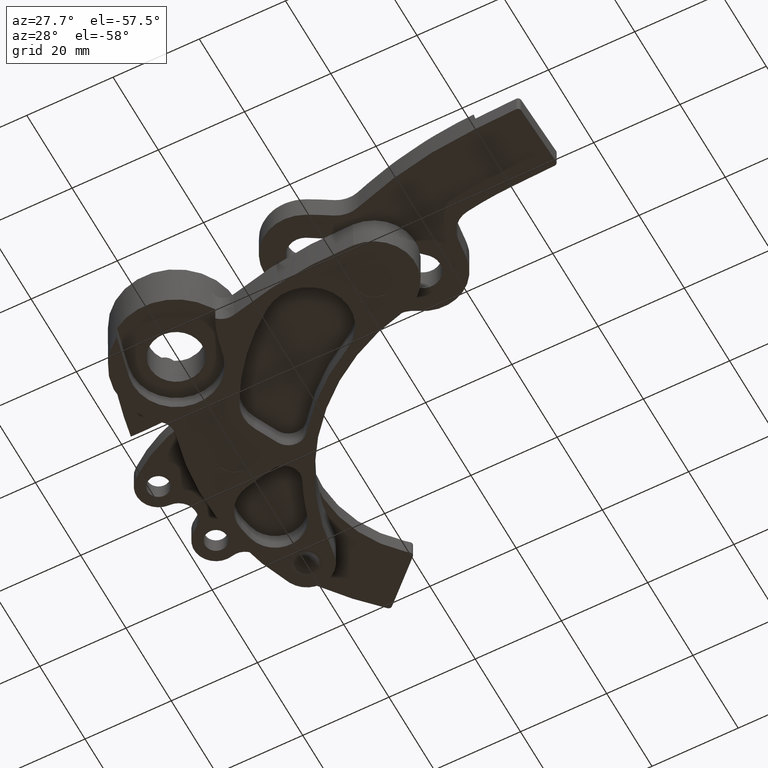
[diagram: clean part render]
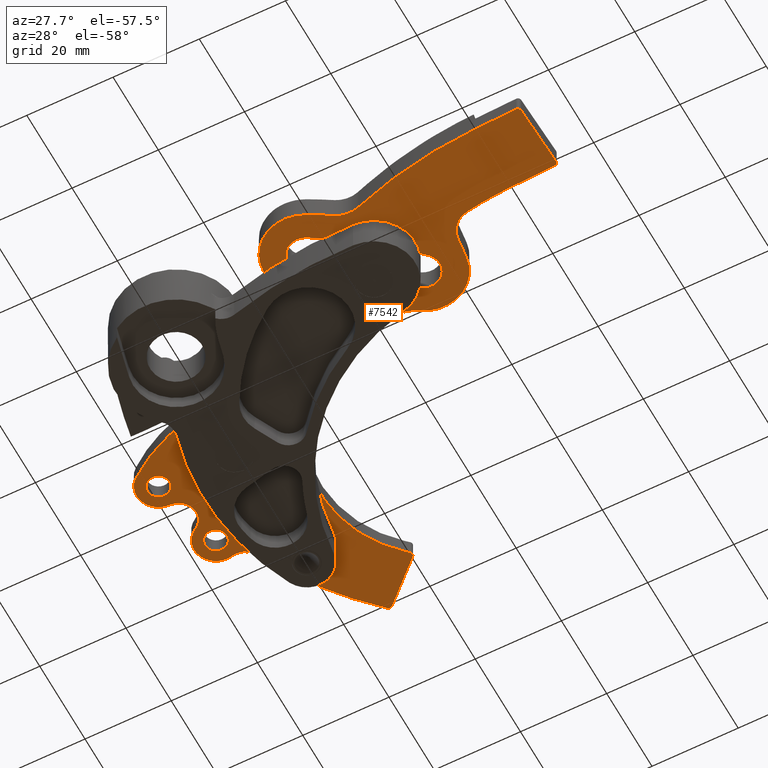
[diagram: same view with one face highlighted and labeled with its STEP entity id]
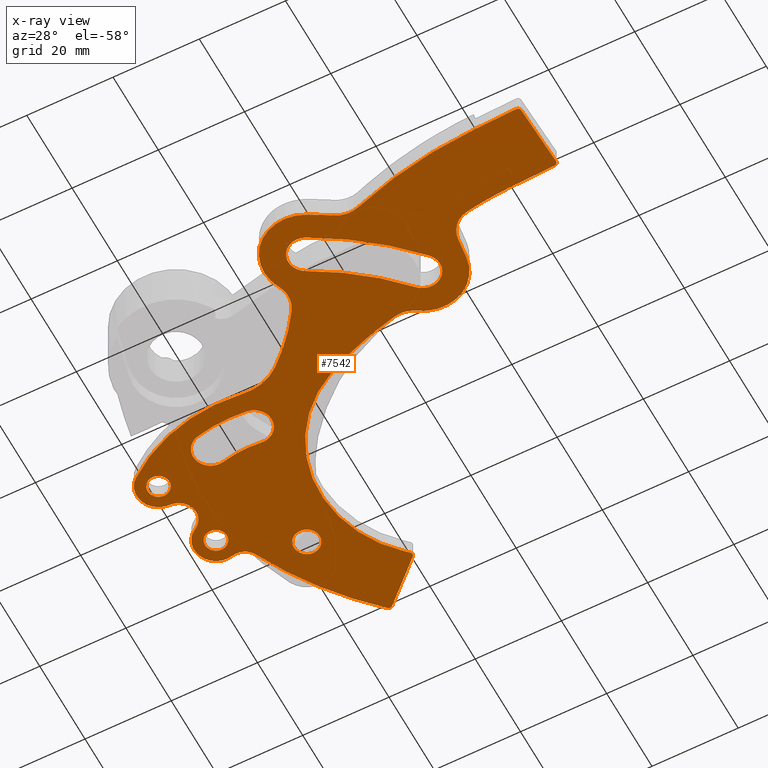
[diagram: x-ray of the same camera — body ghosted, the highlighted face saturated]
A machine part, auxiliary view. The second image highlights one B-rep face of the part: STEP entity #7542.
The next image is the same camera in x-ray: the body ghosted, the highlighted face saturated — about 0% of this face is hidden behind the body in this view.
In plain terms, the highlighted planar face has unit normal (-0, -0, -1).
Its self-contained STEP definition (entity closure, byte-faithful):
#38 = LINE ( 'NONE', #1823, #39 ) ;
#39 = VECTOR ( 'NONE', #1824, 39.37007874015748900 ) ;
#40 = CIRCLE ( 'NONE', #2434, 0.3799999999999046900 ) ;
#42 = LINE ( 'NONE', #1848, #46 ) ;
#43 = LINE ( 'NONE', #1846, #48 ) ;
#46 = VECTOR ( 'NONE', #1854, 39.37007874015748100 ) ;
#48 = VECTOR ( 'NONE', #1856, 39.37007874015748900 ) ;
#51 = CIRCLE ( 'NONE', #2435, 0.1599999999995502800 ) ;
#53 = CIRCLE ( 'NONE', #2436, 2.916000000003148500 ) ;
#56 = CIRCLE ( 'NONE', #2437, 0.1600000000020603000 ) ;
#74 = CIRCLE ( 'NONE', #2450, 2.596000000002185900 ) ;
#78 = CIRCLE ( 'NONE', #2449, 0.1599999999989022700 ) ;
#309 = CIRCLE ( 'NONE', #2538, 0.03000000000058948600 ) ;
#472 = EDGE_CURVE ( 'NONE', #7864, #9071, #38, .T. ) ;
#477 = EDGE_CURVE ( 'NONE', #8271, #9036, #40, .T. ) ;
#542 = EDGE_CURVE ( 'NONE', #9054, #8271, #42, .T. ) ;
#543 = EDGE_CURVE ( 'NONE', #9052, #9027, #43, .T. ) ;
#702 = CARTESIAN_POINT ( 'NONE',  ( 11.09119004668995800, -0.1122164447710053100, 0.003199999999999994900 ) ) ;
#703 = DIRECTION ( 'NONE',  ( -5.084455053182305500E-030, 1.747819943130306000E-029, -1.000000000000000000 ) ) ;
#704 = DIRECTION ( 'NONE',  ( -1.000000000000000000, 0.0000000000000000000, 0.0000000000000000000 ) ) ;
#721 = CARTESIAN_POINT ( 'NONE',  ( 7.873229893112962500, -0.2268133469190051500, 0.003199999999999994900 ) ) ;
#722 = DIRECTION ( 'NONE',  ( -5.084455053182305500E-030, 1.747819943130306000E-029, -1.000000000000000000 ) ) ;
#723 = DIRECTION ( 'NONE',  ( -1.000000000000000000, 2.206492610268077400E-016, 0.0000000000000000000 ) ) ;
#728 = CARTESIAN_POINT ( 'NONE',  ( 10.58792765275995700, -0.09287278627900162600, 0.003200000000000131600 ) ) ;
#729 = DIRECTION ( 'NONE',  ( -5.084455053182305500E-030, 1.747819943130306000E-029, -1.000000000000000000 ) ) ;
#730 = DIRECTION ( 'NONE',  ( -1.000000000000000000, 0.0000000000000000000, 0.0000000000000000000 ) ) ;
#752 = CARTESIAN_POINT ( 'NONE',  ( 7.873229893112962500, -0.2268133469190051500, 0.003199999999999994900 ) ) ;
#753 = DIRECTION ( 'NONE',  ( 5.084455053182305500E-030, -1.747819943130306000E-029, 1.000000000000000000 ) ) ;
#754 = DIRECTION ( 'NONE',  ( -1.000000000000000000, 2.159664057491422500E-016, 0.0000000000000000000 ) ) ;
#761 = CIRCLE ( 'NONE', #2543, 3.249999999998839600 ) ;
#769 = CIRCLE ( 'NONE', #2544, 0.03000000000154454100 ) ;
#775 = CIRCLE ( 'NONE', #2549, 2.687999999999822100 ) ;
#800 = CIRCLE ( 'NONE', #2561, 0.03000000000005295000 ) ;
#811 = CIRCLE ( 'NONE', #2564, 0.02999999999995460500 ) ;
#891 = CIRCLE ( 'NONE', #2626, 4.026080047428886000 ) ;
#894 = CIRCLE ( 'NONE', #2628, 0.2500000000020454200 ) ;
#895 = CIRCLE ( 'NONE', #2627, 0.3800000000003483400 ) ;
#898 = CIRCLE ( 'NONE', #2629, 3.136000000003349000 ) ;
#905 = CIRCLE ( 'NONE', #8307, 1.021000000000895900 ) ;
#908 = CIRCLE ( 'NONE', #8306, 0.1600000000017641500 ) ;
#956 = CIRCLE ( 'NONE', #8327, 0.1600000000016133500 ) ;
#958 = CIRCLE ( 'NONE', #8328, 0.1994853425483170400 ) ;
#960 = CIRCLE ( 'NONE', #8329, 0.1499999999977612900 ) ;
#963 = CIRCLE ( 'NONE', #8330, 0.1994999999988372200 ) ;
#1023 = FACE_BOUND ( 'NONE', #7212, .T. ) ;
#1028 = FACE_OUTER_BOUND ( 'NONE', #7196, .T. ) ;
#1031 = FACE_BOUND ( 'NONE', #7208, .T. ) ;
#1033 = FACE_BOUND ( 'NONE', #7219, .T. ) ;
#1035 = FACE_BOUND ( 'NONE', #7184, .T. ) ;
#1036 = FACE_BOUND ( 'NONE', #7175, .T. ) ;
#1283 = CARTESIAN_POINT ( 'NONE',  ( 6.648430148236972300, -0.1040209946030035800, 0.003200000000000012300 ) ) ;
#1284 = DIRECTION ( 'NONE',  ( -5.084455053182305500E-030, 1.747819943130306000E-029, -1.000000000000000000 ) ) ;
#1285 = DIRECTION ( 'NONE',  ( -1.000000000000000000, 0.0000000000000000000, 0.0000000000000000000 ) ) ;
#1303 = CARTESIAN_POINT ( 'NONE',  ( 6.265114946555971000, -0.5191046682880067200, 0.003200000000000131600 ) ) ;
#1304 = DIRECTION ( 'NONE',  ( -5.084455053182305500E-030, 1.747819943130306000E-029, -1.000000000000000000 ) ) ;
#1305 = DIRECTION ( 'NONE',  ( -1.000000000000000000, 0.0000000000000000000, 0.0000000000000000000 ) ) ;
#1554 = CARTESIAN_POINT ( 'NONE',  ( 9.509627613741763200, -1.843671690561141700, 0.003199999999999994900 ) ) ;
#1560 = CARTESIAN_POINT ( 'NONE',  ( 7.795070564193756500, -0.7943310139426157400, 0.003199999999999994900 ) ) ;
#1573 = CARTESIAN_POINT ( 'NONE',  ( 10.17401667084176300, -1.793704188674870800, 0.003199999999999994900 ) ) ;
#1575 = CARTESIAN_POINT ( 'NONE',  ( 7.926542125840931900, -1.798477056020920000, 0.003200000000000131600 ) ) ;
#1581 = CARTESIAN_POINT ( 'NONE',  ( 10.85858653422763000, -1.820884041226206400, 0.003199999999999994900 ) ) ;
#1591 = CARTESIAN_POINT ( 'NONE',  ( 9.658039765167428600, -1.757526072504479200, 0.003199999999999994900 ) ) ;
#1603 = CARTESIAN_POINT ( 'NONE',  ( 8.231799938240385500, -1.702468369071676900, 0.003199999999999994900 ) ) ;
#1614 = CARTESIAN_POINT ( 'NONE',  ( 11.01422268085558500, -1.456947889820326100, 0.003199999999999994900 ) ) ;
#1615 = CARTESIAN_POINT ( 'NONE',  ( 8.114755982816086900, -0.8085166800465837200, 0.003199999999999994900 ) ) ;
#1626 = CARTESIAN_POINT ( 'NONE',  ( 9.908638226305374300, -1.558527551710728400, 0.003199999999999994900 ) ) ;
#1630 = CARTESIAN_POINT ( 'NONE',  ( 10.00659264872834500, -2.066411351800823100, 0.003199999999999994900 ) ) ;
#1640 = CARTESIAN_POINT ( 'NONE',  ( 9.268527513229967600, 2.146698887045992000, 0.003200000000000012300 ) ) ;
#1641 = DIRECTION ( 'NONE',  ( -5.084455053182305500E-030, 1.747819943130306000E-029, -1.000000000000000000 ) ) ;
#1642 = DIRECTION ( 'NONE',  ( -1.000000000000000000, 2.035613769335407200E-016, 0.0000000000000000000 ) ) ;
#1645 = CARTESIAN_POINT ( 'NONE',  ( 8.079171032040967800, -1.750472712553000900, 0.003200000000000012300 ) ) ;
#1646 = DIRECTION ( 'NONE',  ( -5.084455053182305500E-030, 1.747819943130306000E-029, -1.000000000000000000 ) ) ;
#1647 = DIRECTION ( 'NONE',  ( -1.000000000000000000, 0.0000000000000000000, 0.0000000000000000000 ) ) ;
#1649 = CARTESIAN_POINT ( 'NONE',  ( 7.413897811029968000, -1.706249236112002300, 0.003199999999999994900 ) ) ;
#1650 = DIRECTION ( 'NONE',  ( 5.084455053182305500E-030, -1.747819943130306000E-029, 1.000000000000000000 ) ) ;
#1651 = DIRECTION ( 'NONE',  ( -1.000000000000000000, 0.0000000000000000000, 0.0000000000000000000 ) ) ;
#1655 = CARTESIAN_POINT ( 'NONE',  ( 10.70820394135996300, -0.9235978963070037300, 0.003199999999999994900 ) ) ;
#1656 = DIRECTION ( 'NONE',  ( -5.084455053182305500E-030, 1.747819943130306000E-029, -1.000000000000000000 ) ) ;
#1657 = DIRECTION ( 'NONE',  ( -1.000000000000000000, 2.177812494946863800E-016, 0.0000000000000000000 ) ) ;
#1658 = CARTESIAN_POINT ( 'NONE',  ( 9.186298180562380000, -1.666655552787518000, 0.003199999999999994900 ) ) ;
#1663 = CARTESIAN_POINT ( 'NONE',  ( 8.626958189774466500, -1.700579372697034900, 0.003199999999999994900 ) ) ;
#1684 = CARTESIAN_POINT ( 'NONE',  ( 9.783338995736958300, -1.658026812109002500, 0.003199999999999994900 ) ) ;
#1685 = DIRECTION ( 'NONE',  ( -5.084455053182305500E-030, 1.747819943130306000E-029, -1.000000000000000000 ) ) ;
#1686 = DIRECTION ( 'NONE',  ( -1.000000000000000000, 0.0000000000000000000, 0.0000000000000000000 ) ) ;
#1689 = CARTESIAN_POINT ( 'NONE',  ( 10.70820394135996300, -0.9235978963070037300, 0.003199999999999994900 ) ) ;
#1690 = DIRECTION ( 'NONE',  ( 5.084455053182305500E-030, -1.747819943130306000E-029, 1.000000000000000000 ) ) ;
#1691 = DIRECTION ( 'NONE',  ( -1.000000000000000000, 2.675659151480770000E-016, 0.0000000000000000000 ) ) ;
#1730 = CARTESIAN_POINT ( 'NONE',  ( 8.079171032040967800, -1.750472712553000900, 0.003200000000000012300 ) ) ;
#1731 = DIRECTION ( 'NONE',  ( -5.084455053182305500E-030, 1.747819943130306000E-029, -1.000000000000000000 ) ) ;
#1732 = DIRECTION ( 'NONE',  ( -1.000000000000000000, 0.0000000000000000000, 0.0000000000000000000 ) ) ;
#1735 = CARTESIAN_POINT ( 'NONE',  ( 10.70820394135996300, -0.9235978963070037300, 0.003199999999999994900 ) ) ;
#1736 = DIRECTION ( 'NONE',  ( 5.084455053182305500E-030, -1.747819943130306000E-029, 1.000000000000000000 ) ) ;
#1737 = DIRECTION ( 'NONE',  ( -1.000000000000000000, 2.104659471234177800E-016, 0.0000000000000000000 ) ) ;
#1822 = EDGE_CURVE ( 'NONE', #7100, #7160, #51, .T. ) ;
#1823 = CARTESIAN_POINT ( 'NONE',  ( 6.537097981614321500, -0.8111065937337589300, 0.003199999999999994900 ) ) ;
#1824 = DIRECTION ( 'NONE',  ( -0.7346613693549278700, 0.6784339852760489200, -1.559232882975908400E-029 ) ) ;
#1846 = CARTESIAN_POINT ( 'NONE',  ( 6.243075105474610500, -0.4987516487308426000, 0.003199999999999994900 ) ) ;
#1848 = CARTESIAN_POINT ( 'NONE',  ( 7.572026926337409600, -0.6196241644480170500, 0.003199999999999994900 ) ) ;
#1850 = CARTESIAN_POINT ( 'NONE',  ( 7.954913273504974600, -0.8014238469949985800, 0.003199999999999994900 ) ) ;
#1851 = DIRECTION ( 'NONE',  ( -5.084455053182305500E-030, 1.747819943130306000E-029, -1.000000000000000000 ) ) ;
#1852 = DIRECTION ( 'NONE',  ( -1.000000000000000000, 3.594536833769668900E-016, 0.0000000000000000000 ) ) ;
#1854 = DIRECTION ( 'NONE',  ( 0.7847005334015128000, 0.6198750461821973500, -6.837821674552456200E-030 ) ) ;
#1856 = DIRECTION ( 'NONE',  ( 0.6784339852761216400, 0.7346613693548608200, -9.386212176965652300E-030 ) ) ;
#1863 = CARTESIAN_POINT ( 'NONE',  ( 10.09030465977996500, -1.930057770234998100, 0.003199999999999994900 ) ) ;
#1864 = DIRECTION ( 'NONE',  ( -5.084455053182305500E-030, 1.747819943130306000E-029, -1.000000000000000000 ) ) ;
#1865 = DIRECTION ( 'NONE',  ( -1.000000000000000000, 0.0000000000000000000, 0.0000000000000000000 ) ) ;
#1867 = CARTESIAN_POINT ( 'NONE',  ( 10.70820394135996300, -0.9235978963070037300, 0.003199999999999994900 ) ) ;
#1868 = DIRECTION ( 'NONE',  ( -5.084455053182305500E-030, 1.747819943130306000E-029, -1.000000000000000000 ) ) ;
#1869 = DIRECTION ( 'NONE',  ( -1.000000000000000000, 2.342119336129383900E-016, 0.0000000000000000000 ) ) ;
#1871 = CARTESIAN_POINT ( 'NONE',  ( 7.954913273504974600, -0.8014238469949985800, 0.003199999999999994900 ) ) ;
#1872 = DIRECTION ( 'NONE',  ( -5.084455053182305500E-030, 1.747819943130306000E-029, -1.000000000000000000 ) ) ;
#1873 = DIRECTION ( 'NONE',  ( -1.000000000000000000, 0.0000000000000000000, 0.0000000000000000000 ) ) ;
#1981 = CARTESIAN_POINT ( 'NONE',  ( 10.81471731817996600, -1.974752465161000700, 0.003200000000000029200 ) ) ;
#1982 = DIRECTION ( 'NONE',  ( 5.084455053182305500E-030, -1.747819943130306000E-029, 1.000000000000000000 ) ) ;
#1983 = DIRECTION ( 'NONE',  ( -1.000000000000000000, 0.0000000000000000000, 0.0000000000000000000 ) ) ;
#1986 = CARTESIAN_POINT ( 'NONE',  ( 10.55809292164995500, -2.226493662847007100, 0.003199999999999994900 ) ) ;
#1987 = DIRECTION ( 'NONE',  ( -5.084455053182305500E-030, 1.747819943130306000E-029, -1.000000000000000000 ) ) ;
#1988 = DIRECTION ( 'NONE',  ( -1.000000000000000000, 0.0000000000000000000, 0.0000000000000000000 ) ) ;
#1991 = CARTESIAN_POINT ( 'NONE',  ( 11.09011494978995800, -1.327563333108008300, 0.003199999999999994900 ) ) ;
#1992 = DIRECTION ( 'NONE',  ( 5.084455053182305500E-030, -1.747819943130306000E-029, 1.000000000000000000 ) ) ;
#1993 = DIRECTION ( 'NONE',  ( -1.000000000000000000, 0.0000000000000000000, 0.0000000000000000000 ) ) ;
#1996 = CARTESIAN_POINT ( 'NONE',  ( 10.91328596297995500, -1.629029350135004400, 0.003200000000000131600 ) ) ;
#1997 = DIRECTION ( 'NONE',  ( -5.084455053182305500E-030, 1.747819943130306000E-029, -1.000000000000000000 ) ) ;
#1998 = DIRECTION ( 'NONE',  ( -1.000000000000000000, 0.0000000000000000000, 0.0000000000000000000 ) ) ;
#2143 = EDGE_CURVE ( 'NONE', #7098, #7095, #53, .T. ) ;
#2145 = EDGE_CURVE ( 'NONE', #7095, #7143, #56, .T. ) ;
#2171 = EDGE_CURVE ( 'NONE', #7130, #7098, #78, .T. ) ;
#2172 = EDGE_CURVE ( 'NONE', #7143, #7130, #74, .T. ) ;
#2337 = EDGE_CURVE ( 'NONE', #9064, #9044, #309, .T. ) ;
#2343 = EDGE_CURVE ( 'NONE', #9044, #9087, #761, .T. ) ;
#2346 = EDGE_CURVE ( 'NONE', #7892, #7896, #769, .T. ) ;
#2354 = EDGE_CURVE ( 'NONE', #7842, #7892, #775, .T. ) ;
#2375 = EDGE_CURVE ( 'NONE', #9027, #9069, #800, .T. ) ;
#2383 = EDGE_CURVE ( 'NONE', #9071, #9052, #811, .T. ) ;
#2434 = AXIS2_PLACEMENT_3D ( 'NONE', #1850, #1851, #1852 ) ;
#2435 = AXIS2_PLACEMENT_3D ( 'NONE', #1863, #1864, #1865 ) ;
#2436 = AXIS2_PLACEMENT_3D ( 'NONE', #1867, #1868, #1869 ) ;
#2437 = AXIS2_PLACEMENT_3D ( 'NONE', #1871, #1872, #1873 ) ;
#2449 = AXIS2_PLACEMENT_3D ( 'NONE', #1730, #1731, #1732 ) ;
#2450 = AXIS2_PLACEMENT_3D ( 'NONE', #1735, #1736, #1737 ) ;
#2538 = AXIS2_PLACEMENT_3D ( 'NONE', #702, #703, #704 ) ;
#2543 = AXIS2_PLACEMENT_3D ( 'NONE', #721, #722, #723 ) ;
#2544 = AXIS2_PLACEMENT_3D ( 'NONE', #728, #729, #730 ) ;
#2549 = AXIS2_PLACEMENT_3D ( 'NONE', #752, #753, #754 ) ;
#2561 = AXIS2_PLACEMENT_3D ( 'NONE', #1283, #1284, #1285 ) ;
#2564 = AXIS2_PLACEMENT_3D ( 'NONE', #1303, #1304, #1305 ) ;
#2626 = AXIS2_PLACEMENT_3D ( 'NONE', #1640, #1641, #1642 ) ;
#2627 = AXIS2_PLACEMENT_3D ( 'NONE', #1645, #1646, #1647 ) ;
#2628 = AXIS2_PLACEMENT_3D ( 'NONE', #1649, #1650, #1651 ) ;
#2629 = AXIS2_PLACEMENT_3D ( 'NONE', #1655, #1656, #1657 ) ;
#4454 = CIRCLE ( 'NONE', #8531, 0.4569195947070918100 ) ;
#4463 = CIRCLE ( 'NONE', #8541, 0.2499999999997921700 ) ;
#4465 = CIRCLE ( 'NONE', #8550, 1.510999999999977500 ) ;
#4466 = CIRCLE ( 'NONE', #8551, 1.922170114939471000 ) ;
#4501 = CIRCLE ( 'NONE', #8575, 0.09999999999999947800 ) ;
#4514 = CIRCLE ( 'NONE', #8578, 0.09999999999999947800 ) ;
#4515 = CIRCLE ( 'NONE', #8576, 0.1179999999999991200 ) ;
#4516 = CIRCLE ( 'NONE', #8577, 1.341000000002210400 ) ;
#4694 = CIRCLE ( 'NONE', #8623, 2.990074261813486300 ) ;
#4698 = CIRCLE ( 'NONE', #8624, 3.401080047429943400 ) ;
#4706 = CIRCLE ( 'NONE', #8626, 0.2271482726783255500 ) ;
#4710 = CIRCLE ( 'NONE', #8628, 1.099999999999458700 ) ;
#4712 = LINE ( 'NONE', #6291, #4716 ) ;
#4716 = VECTOR ( 'NONE', #6292, 39.37007874015748100 ) ;
#4720 = CIRCLE ( 'NONE', #8630, 0.2499999999998369600 ) ;
#4736 = LINE ( 'NONE', #6333, #4738 ) ;
#4738 = VECTOR ( 'NONE', #6340, 39.37007874015748100 ) ;
#4908 = VERTEX_POINT ( 'NONE', #6789 ) ;
#4910 = VERTEX_POINT ( 'NONE', #6791 ) ;
#4912 = VERTEX_POINT ( 'NONE', #6793 ) ;
#5121 = CARTESIAN_POINT ( 'NONE',  ( 9.147183530457972700, -2.121897862084996400, 0.003200000000000131600 ) ) ;
#5122 = DIRECTION ( 'NONE',  ( 5.084455053182305500E-030, -1.747819943130306000E-029, 1.000000000000000000 ) ) ;
#5123 = DIRECTION ( 'NONE',  ( -1.000000000000000000, 0.0000000000000000000, 0.0000000000000000000 ) ) ;
#5127 = CARTESIAN_POINT ( 'NONE',  ( 8.678305416056971900, -1.945249481932995300, 0.003199999999999994900 ) ) ;
#5128 = DIRECTION ( 'NONE',  ( 5.084455053182305500E-030, -1.747819943130306000E-029, 1.000000000000000000 ) ) ;
#5129 = DIRECTION ( 'NONE',  ( -1.000000000000000000, 0.0000000000000000000, 0.0000000000000000000 ) ) ;
#5132 = CARTESIAN_POINT ( 'NONE',  ( 10.70820394135996300, -0.9235978963070037300, 0.003199999999999994900 ) ) ;
#5133 = DIRECTION ( 'NONE',  ( -5.084455053182305500E-030, 1.747819943130306000E-029, -1.000000000000000000 ) ) ;
#5134 = DIRECTION ( 'NONE',  ( -1.000000000000000000, 1.807973523272206400E-016, 0.0000000000000000000 ) ) ;
#5137 = CARTESIAN_POINT ( 'NONE',  ( 9.021750605128971800, -3.581769660664990700, 0.003200000000000131600 ) ) ;
#5138 = DIRECTION ( 'NONE',  ( 5.084455053182305500E-030, -1.747819943130306000E-029, 1.000000000000000000 ) ) ;
#5139 = DIRECTION ( 'NONE',  ( -1.000000000000000000, 2.842462248717553000E-016, 0.0000000000000000000 ) ) ;
#5143 = CARTESIAN_POINT ( 'NONE',  ( 10.55976229620310900, -0.1380009201887835400, 0.003199999999999994900 ) ) ;
#5150 = CARTESIAN_POINT ( 'NONE',  ( 7.716677379812985300, -1.864483028291025000, 0.003200000000000131600 ) ) ;
#5154 = CARTESIAN_POINT ( 'NONE',  ( 6.537097981614977000, -0.8111065937330469400, 0.003199999999999994900 ) ) ;
#5163 = CARTESIAN_POINT ( 'NONE',  ( 8.435934265916936100, -0.8881031303023622100, 0.003199999999999994900 ) ) ;
#5171 = CARTESIAN_POINT ( 'NONE',  ( 10.55796410132576400, -0.09435115891406493900, 0.003200000000000131600 ) ) ;
#5173 = CARTESIAN_POINT ( 'NONE',  ( 7.299733326406325800, -0.6266014823614573000, 0.003199999999999994900 ) ) ;
#5174 = CARTESIAN_POINT ( 'NONE',  ( 10.58907989773203100, -0.06289492225207099500, 0.003200000000000131600 ) ) ;
#5753 = VERTEX_POINT ( 'NONE', #1554 ) ;
#5995 = CARTESIAN_POINT ( 'NONE',  ( 10.55809292164995500, -2.226493662847007100, 0.003199999999999994900 ) ) ;
#5996 = DIRECTION ( 'NONE',  ( -5.084455053182305500E-030, 1.747819943130306000E-029, -1.000000000000000000 ) ) ;
#5997 = DIRECTION ( 'NONE',  ( -1.000000000000000000, 0.0000000000000000000, 0.0000000000000000000 ) ) ;
#5998 = CARTESIAN_POINT ( 'NONE',  ( 10.70820394135996300, -0.9235978963070037300, 0.003199999999999994900 ) ) ;
#5999 = DIRECTION ( 'NONE',  ( -5.084455053182305500E-030, 1.747819943130306000E-029, -1.000000000000000000 ) ) ;
#6000 = DIRECTION ( 'NONE',  ( -1.000000000000000000, 0.0000000000000000000, 0.0000000000000000000 ) ) ;
#6002 = CARTESIAN_POINT ( 'NONE',  ( 10.70820394135996300, -0.9235978963070037300, 0.003199999999999994900 ) ) ;
#6003 = DIRECTION ( 'NONE',  ( -5.084455053182305500E-030, 1.747819943130306000E-029, -1.000000000000000000 ) ) ;
#6004 = DIRECTION ( 'NONE',  ( -1.000000000000000000, 2.037172254779836100E-016, 0.0000000000000000000 ) ) ;
#6006 = CARTESIAN_POINT ( 'NONE',  ( 10.91328596297995500, -1.629029350135004400, 0.003200000000000131600 ) ) ;
#6007 = DIRECTION ( 'NONE',  ( -5.084455053182305500E-030, 1.747819943130306000E-029, -1.000000000000000000 ) ) ;
#6008 = DIRECTION ( 'NONE',  ( -1.000000000000000000, 0.0000000000000000000, 0.0000000000000000000 ) ) ;
#6199 = CARTESIAN_POINT ( 'NONE',  ( 10.70049874346661100, -2.086797622088769600, 0.003199999999999994900 ) ) ;
#6204 = CARTESIAN_POINT ( 'NONE',  ( 8.440553676358504700, -1.867957113161866200, 0.003200000000000029200 ) ) ;
#6235 = CARTESIAN_POINT ( 'NONE',  ( 10.53526058194752900, -2.424668046043546400, 0.003199999999999994900 ) ) ;
#6240 = CARTESIAN_POINT ( 'NONE',  ( 7.657127737959783100, -1.648463401808652100, 0.003200000000000012300 ) ) ;
#6258 = CARTESIAN_POINT ( 'NONE',  ( 7.719360755956179400, -0.5032376443022338300, 0.003199999999999994900 ) ) ;
#6279 = CARTESIAN_POINT ( 'NONE',  ( 10.07403266856995700, 1.613332000654985600, 0.003199999999999994900 ) ) ;
#6280 = DIRECTION ( 'NONE',  ( 5.084455053182305500E-030, -1.747819943130306000E-029, 1.000000000000000000 ) ) ;
#6281 = DIRECTION ( 'NONE',  ( -1.000000000000000000, 1.827277689088157700E-016, 0.0000000000000000000 ) ) ;
#6282 = CARTESIAN_POINT ( 'NONE',  ( 9.268527513229967600, 2.146698887045992000, 0.003200000000000012300 ) ) ;
#6283 = DIRECTION ( 'NONE',  ( 5.084455053182305500E-030, -1.747819943130306000E-029, 1.000000000000000000 ) ) ;
#6284 = DIRECTION ( 'NONE',  ( -1.000000000000000000, 2.409688647929891000E-016, 0.0000000000000000000 ) ) ;
#6288 = CARTESIAN_POINT ( 'NONE',  ( 7.431223380320969500, -0.4413807937160060800, 0.003199999999999994900 ) ) ;
#6289 = DIRECTION ( 'NONE',  ( 5.084455053182305500E-030, -1.747819943130306000E-029, 1.000000000000000000 ) ) ;
#6290 = DIRECTION ( 'NONE',  ( -1.000000000000000000, 3.006679251236207600E-016, 0.0000000000000000000 ) ) ;
#6291 = CARTESIAN_POINT ( 'NONE',  ( 10.58907989773199000, -0.06289492225296922100, 0.003200000000000131600 ) ) ;
#6292 = DIRECTION ( 'NONE',  ( 0.9992621341769056800, -0.03840816580124312800, 5.725404538674386700E-030 ) ) ;
#6297 = CARTESIAN_POINT ( 'NONE',  ( 9.460362875295960100, -0.1743452912500005600, 0.003199999999999994900 ) ) ;
#6298 = DIRECTION ( 'NONE',  ( 5.084455053182305500E-030, -1.747819943130306000E-029, 1.000000000000000000 ) ) ;
#6299 = DIRECTION ( 'NONE',  ( -1.000000000000000000, 2.173060904052187600E-016, 0.0000000000000000000 ) ) ;
#6315 = CARTESIAN_POINT ( 'NONE',  ( 8.572895613629963700, -0.6789582302150059000, 0.003200000000000131600 ) ) ;
#6316 = DIRECTION ( 'NONE',  ( 5.084455053182305500E-030, -1.747819943130306000E-029, 1.000000000000000000 ) ) ;
#6317 = DIRECTION ( 'NONE',  ( -1.000000000000000000, 0.0000000000000000000, 0.0000000000000000000 ) ) ;
#6333 = CARTESIAN_POINT ( 'NONE',  ( 6.668783167795197600, -0.08198115352228586800, 0.003200000000000131600 ) ) ;
#6340 = DIRECTION ( 'NONE',  ( 0.7346613693551693500, -0.6784339852757874700, 1.559232882975908100E-029 ) ) ;
#6365 = CARTESIAN_POINT ( 'NONE',  ( 6.626390307156136700, -0.08366797504478602800, 0.003200000000000131600 ) ) ;
#6372 = CARTESIAN_POINT ( 'NONE',  ( 9.103214594810456400, -1.214751512754998400, 0.003199999999999994900 ) ) ;
#6376 = CARTESIAN_POINT ( 'NONE',  ( 8.327664526278839600, -0.7275556971912066100, 0.003199999999999994900 ) ) ;
#6384 = CARTESIAN_POINT ( 'NONE',  ( 11.12117104191028900, -0.1111487717714495800, 0.003199999999999994900 ) ) ;
#6392 = CARTESIAN_POINT ( 'NONE',  ( 6.243075105474477300, -0.4987516487307093200, 0.003199999999999994900 ) ) ;
#6394 = CARTESIAN_POINT ( 'NONE',  ( 7.572026926337462000, -0.6196241644480716700, 0.003199999999999994900 ) ) ;
#6404 = CARTESIAN_POINT ( 'NONE',  ( 11.09234229165698300, -0.08223858074487128100, 0.003199999999999994900 ) ) ;
#6409 = CARTESIAN_POINT ( 'NONE',  ( 6.668783167795227800, -0.08198115352225418500, 0.003200000000000131600 ) ) ;
#6411 = CARTESIAN_POINT ( 'NONE',  ( 6.244761926997872700, -0.5411445093690151500, 0.003200000000000131600 ) ) ;
#6414 = CARTESIAN_POINT ( 'NONE',  ( 6.961119222410155200, -0.3519432378854605000, 0.003199999999999994900 ) ) ;
#6434 = CARTESIAN_POINT ( 'NONE',  ( 10.94819355023308900, -1.279000833721104100, 0.003199999999999994900 ) ) ;
#6436 = ORIENTED_EDGE ( 'NONE', *, *, #2143, .T. ) ;
#6444 = CARTESIAN_POINT ( 'NONE',  ( 7.522328294185147300, -1.480987543133019500, 0.003199999999999994900 ) ) ;
#6488 = ORIENTED_EDGE ( 'NONE', *, *, #477, .F. ) ;
#6502 = ORIENTED_EDGE ( 'NONE', *, *, #2172, .T. ) ;
#6520 = ORIENTED_EDGE ( 'NONE', *, *, #2354, .F. ) ;
#6523 = ORIENTED_EDGE ( 'NONE', *, *, #7830, .F. ) ;
#6530 = ORIENTED_EDGE ( 'NONE', *, *, #8285, .F. ) ;
#6568 = ORIENTED_EDGE ( 'NONE', *, *, #2346, .F. ) ;
#6569 = ORIENTED_EDGE ( 'NONE', *, *, #8292, .F. ) ;
#6581 = ORIENTED_EDGE ( 'NONE', *, *, #7834, .F. ) ;
#6588 = ORIENTED_EDGE ( 'NONE', *, *, #8282, .F. ) ;
#6592 = ORIENTED_EDGE ( 'NONE', *, *, #7168, .F. ) ;
#6599 = ORIENTED_EDGE ( 'NONE', *, *, #7949, .T. ) ;
#6610 = ORIENTED_EDGE ( 'NONE', *, *, #472, .F. ) ;
#6619 = ORIENTED_EDGE ( 'NONE', *, *, #7471, .F. ) ;
#6635 = ORIENTED_EDGE ( 'NONE', *, *, #2383, .F. ) ;
#6649 = ORIENTED_EDGE ( 'NONE', *, *, #2343, .F. ) ;
#6656 = ORIENTED_EDGE ( 'NONE', *, *, #2171, .T. ) ;
#6661 = ORIENTED_EDGE ( 'NONE', *, *, #2375, .F. ) ;
#6667 = ORIENTED_EDGE ( 'NONE', *, *, #1822, .T. ) ;
#6694 = ORIENTED_EDGE ( 'NONE', *, *, #7173, .F. ) ;
#6701 = ORIENTED_EDGE ( 'NONE', *, *, #8281, .F. ) ;
#6705 = ORIENTED_EDGE ( 'NONE', *, *, #8287, .F. ) ;
#6712 = ORIENTED_EDGE ( 'NONE', *, *, #2145, .T. ) ;
#6716 = ORIENTED_EDGE ( 'NONE', *, *, #7169, .F. ) ;
#6718 = ORIENTED_EDGE ( 'NONE', *, *, #8299, .F. ) ;
#6724 = ORIENTED_EDGE ( 'NONE', *, *, #542, .F. ) ;
#6748 = ORIENTED_EDGE ( 'NONE', *, *, #7473, .F. ) ;
#6786 = ORIENTED_EDGE ( 'NONE', *, *, #543, .F. ) ;
#6789 = CARTESIAN_POINT ( 'NONE',  ( 10.45809292164995500, -2.226493662847007100, 0.003199999999999994900 ) ) ;
#6791 = CARTESIAN_POINT ( 'NONE',  ( 10.59020394135996300, -0.9235978963070037300, 0.003199999999999994900 ) ) ;
#6793 = CARTESIAN_POINT ( 'NONE',  ( 10.81328596297995600, -1.629029350135004400, 0.003200000000000131600 ) ) ;
#6820 = ORIENTED_EDGE ( 'NONE', *, *, #7318, .T. ) ;
#6826 = ORIENTED_EDGE ( 'NONE', *, *, #7322, .T. ) ;
#6830 = ORIENTED_EDGE ( 'NONE', *, *, #7469, .F. ) ;
#6867 = ORIENTED_EDGE ( 'NONE', *, *, #7171, .F. ) ;
#6907 = ORIENTED_EDGE ( 'NONE', *, *, #7836, .F. ) ;
#6909 = ORIENTED_EDGE ( 'NONE', *, *, #7835, .F. ) ;
#6912 = ORIENTED_EDGE ( 'NONE', *, *, #7947, .T. ) ;
#6920 = ORIENTED_EDGE ( 'NONE', *, *, #2337, .F. ) ;
#6924 = ORIENTED_EDGE ( 'NONE', *, *, #7954, .T. ) ;
#6942 = ORIENTED_EDGE ( 'NONE', *, *, #7948, .T. ) ;
#6945 = ORIENTED_EDGE ( 'NONE', *, *, #7468, .F. ) ;
#6952 = ORIENTED_EDGE ( 'NONE', *, *, #8288, .F. ) ;
#7095 = VERTEX_POINT ( 'NONE', #1560 ) ;
#7098 = VERTEX_POINT ( 'NONE', #1575 ) ;
#7100 = VERTEX_POINT ( 'NONE', #1573 ) ;
#7106 = VERTEX_POINT ( 'NONE', #1581 ) ;
#7116 = VERTEX_POINT ( 'NONE', #1591 ) ;
#7130 = VERTEX_POINT ( 'NONE', #1603 ) ;
#7142 = VERTEX_POINT ( 'NONE', #1614 ) ;
#7143 = VERTEX_POINT ( 'NONE', #1615 ) ;
#7156 = VERTEX_POINT ( 'NONE', #1626 ) ;
#7160 = VERTEX_POINT ( 'NONE', #1630 ) ;
#7168 = EDGE_CURVE ( 'NONE', #9093, #7864, #891, .T. ) ;
#7169 = EDGE_CURVE ( 'NONE', #8165, #7876, #895, .T. ) ;
#7171 = EDGE_CURVE ( 'NONE', #8236, #9093, #894, .T. ) ;
#7173 = EDGE_CURVE ( 'NONE', #7876, #8236, #898, .T. ) ;
#7175 = EDGE_LOOP ( 'NONE', ( #6942 ) ) ;
#7184 = EDGE_LOOP ( 'NONE', ( #6912 ) ) ;
#7187 = VERTEX_POINT ( 'NONE', #1658 ) ;
#7196 = EDGE_LOOP ( 'NONE', ( #6619, #6649, #6920, #6952, #6568, #6520, #6705, #6701, #6569, #6488, #6724, #6530, #6588, #6718, #6661, #6786, #6635, #6610, #6592, #6867, #6694, #6716, #6581, #6907, #6523, #6909, #6830, #6945, #6748 ) ) ;
#7208 = EDGE_LOOP ( 'NONE', ( #6599, #6820, #6826, #6667 ) ) ;
#7212 = EDGE_LOOP ( 'NONE', ( #6924 ) ) ;
#7219 = EDGE_LOOP ( 'NONE', ( #6436, #6712, #6502, #6656 ) ) ;
#7225 = VERTEX_POINT ( 'NONE', #1663 ) ;
#7318 = EDGE_CURVE ( 'NONE', #7116, #7156, #908, .T. ) ;
#7322 = EDGE_CURVE ( 'NONE', #7156, #7100, #905, .T. ) ;
#7468 = EDGE_CURVE ( 'NONE', #7106, #8156, #956, .T. ) ;
#7469 = EDGE_CURVE ( 'NONE', #8156, #8220, #958, .T. ) ;
#7471 = EDGE_CURVE ( 'NONE', #9087, #7142, #960, .T. ) ;
#7473 = EDGE_CURVE ( 'NONE', #7142, #7106, #963, .T. ) ;
#7542 = ADVANCED_FACE ( 'NONE', ( #1023, #1035, #1028, #1031, #1033, #1036 ), #8781, .T. ) ;
#7830 = EDGE_CURVE ( 'NONE', #5753, #7187, #4454, .T. ) ;
#7834 = EDGE_CURVE ( 'NONE', #7225, #8165, #4463, .T. ) ;
#7835 = EDGE_CURVE ( 'NONE', #8220, #5753, #4465, .T. ) ;
#7836 = EDGE_CURVE ( 'NONE', #7187, #7225, #4466, .T. ) ;
#7842 = VERTEX_POINT ( 'NONE', #5143 ) ;
#7864 = VERTEX_POINT ( 'NONE', #5154 ) ;
#7876 = VERTEX_POINT ( 'NONE', #5150 ) ;
#7881 = VERTEX_POINT ( 'NONE', #5163 ) ;
#7892 = VERTEX_POINT ( 'NONE', #5171 ) ;
#7896 = VERTEX_POINT ( 'NONE', #5174 ) ;
#7901 = VERTEX_POINT ( 'NONE', #5173 ) ;
#7947 = EDGE_CURVE ( 'NONE', #4908, #4908, #4501, .T. ) ;
#7948 = EDGE_CURVE ( 'NONE', #4910, #4910, #4515, .T. ) ;
#7949 = EDGE_CURVE ( 'NONE', #7160, #7116, #4516, .T. ) ;
#7954 = EDGE_CURVE ( 'NONE', #4912, #4912, #4514, .T. ) ;
#8156 = VERTEX_POINT ( 'NONE', #6199 ) ;
#8165 = VERTEX_POINT ( 'NONE', #6204 ) ;
#8220 = VERTEX_POINT ( 'NONE', #6235 ) ;
#8236 = VERTEX_POINT ( 'NONE', #6240 ) ;
#8271 = VERTEX_POINT ( 'NONE', #6258 ) ;
#8281 = EDGE_CURVE ( 'NONE', #7881, #9031, #4694, .T. ) ;
#8282 = EDGE_CURVE ( 'NONE', #9074, #7901, #4698, .T. ) ;
#8285 = EDGE_CURVE ( 'NONE', #7901, #9054, #4706, .T. ) ;
#8287 = EDGE_CURVE ( 'NONE', #9031, #7842, #4710, .T. ) ;
#8288 = EDGE_CURVE ( 'NONE', #7896, #9064, #4712, .T. ) ;
#8292 = EDGE_CURVE ( 'NONE', #9036, #7881, #4720, .T. ) ;
#8299 = EDGE_CURVE ( 'NONE', #9069, #9074, #4736, .T. ) ;
#8306 = AXIS2_PLACEMENT_3D ( 'NONE', #1684, #1685, #1686 ) ;
#8307 = AXIS2_PLACEMENT_3D ( 'NONE', #1689, #1690, #1691 ) ;
#8327 = AXIS2_PLACEMENT_3D ( 'NONE', #1981, #1982, #1983 ) ;
#8328 = AXIS2_PLACEMENT_3D ( 'NONE', #1986, #1987, #1988 ) ;
#8329 = AXIS2_PLACEMENT_3D ( 'NONE', #1991, #1992, #1993 ) ;
#8330 = AXIS2_PLACEMENT_3D ( 'NONE', #1996, #1997, #1998 ) ;
#8363 = AXIS2_PLACEMENT_3D ( 'NONE', #8783, #8780, #8784 ) ;
#8531 = AXIS2_PLACEMENT_3D ( 'NONE', #5121, #5122, #5123 ) ;
#8541 = AXIS2_PLACEMENT_3D ( 'NONE', #5127, #5128, #5129 ) ;
#8550 = AXIS2_PLACEMENT_3D ( 'NONE', #5132, #5133, #5134 ) ;
#8551 = AXIS2_PLACEMENT_3D ( 'NONE', #5137, #5138, #5139 ) ;
#8575 = AXIS2_PLACEMENT_3D ( 'NONE', #5995, #5996, #5997 ) ;
#8576 = AXIS2_PLACEMENT_3D ( 'NONE', #5998, #5999, #6000 ) ;
#8577 = AXIS2_PLACEMENT_3D ( 'NONE', #6002, #6003, #6004 ) ;
#8578 = AXIS2_PLACEMENT_3D ( 'NONE', #6006, #6007, #6008 ) ;
#8623 = AXIS2_PLACEMENT_3D ( 'NONE', #6279, #6280, #6281 ) ;
#8624 = AXIS2_PLACEMENT_3D ( 'NONE', #6282, #6283, #6284 ) ;
#8626 = AXIS2_PLACEMENT_3D ( 'NONE', #6288, #6289, #6290 ) ;
#8628 = AXIS2_PLACEMENT_3D ( 'NONE', #6297, #6298, #6299 ) ;
#8630 = AXIS2_PLACEMENT_3D ( 'NONE', #6315, #6316, #6317 ) ;
#8780 = DIRECTION ( 'NONE',  ( -5.069047613627220200E-030, -1.747819943130306000E-029, 1.000000000000000000 ) ) ;
#8781 = PLANE ( 'NONE',  #8363 ) ;
#8783 = CARTESIAN_POINT ( 'NONE',  ( 11.09011494978995800, -1.327563333108008300, 0.003199999999999994900 ) ) ;
#8784 = DIRECTION ( 'NONE',  ( -1.000000000000000000, 2.220446049250320500E-016, -5.069047613627216000E-030 ) ) ;
#9027 = VERTEX_POINT ( 'NONE', #6365 ) ;
#9031 = VERTEX_POINT ( 'NONE', #6372 ) ;
#9036 = VERTEX_POINT ( 'NONE', #6376 ) ;
#9044 = VERTEX_POINT ( 'NONE', #6384 ) ;
#9052 = VERTEX_POINT ( 'NONE', #6392 ) ;
#9054 = VERTEX_POINT ( 'NONE', #6394 ) ;
#9064 = VERTEX_POINT ( 'NONE', #6404 ) ;
#9069 = VERTEX_POINT ( 'NONE', #6409 ) ;
#9071 = VERTEX_POINT ( 'NONE', #6411 ) ;
#9074 = VERTEX_POINT ( 'NONE', #6414 ) ;
#9087 = VERTEX_POINT ( 'NONE', #6434 ) ;
#9093 = VERTEX_POINT ( 'NONE', #6444 ) ;